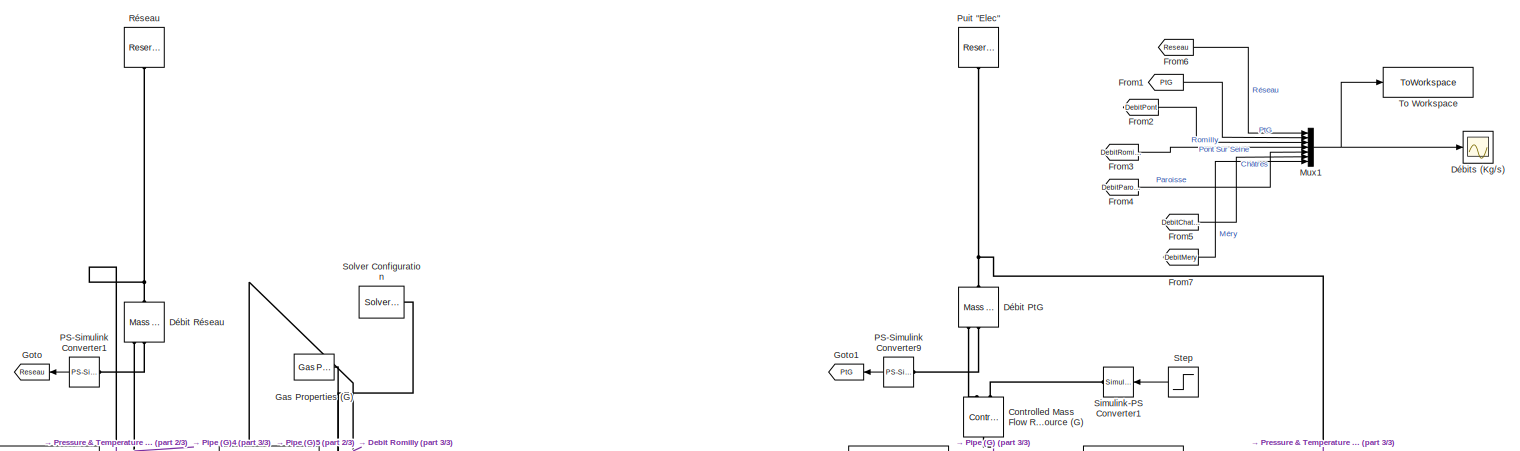
[diagram: root canvas - part 1/3, full width, top band]
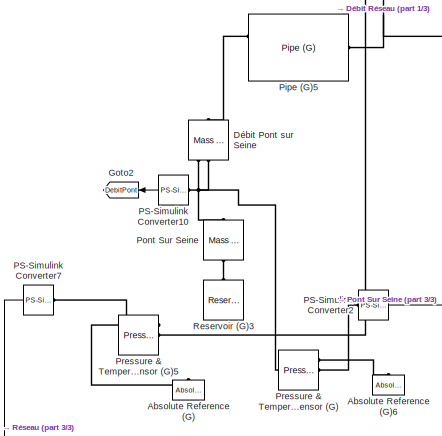
[diagram: root canvas - part 2/3, middle left region]
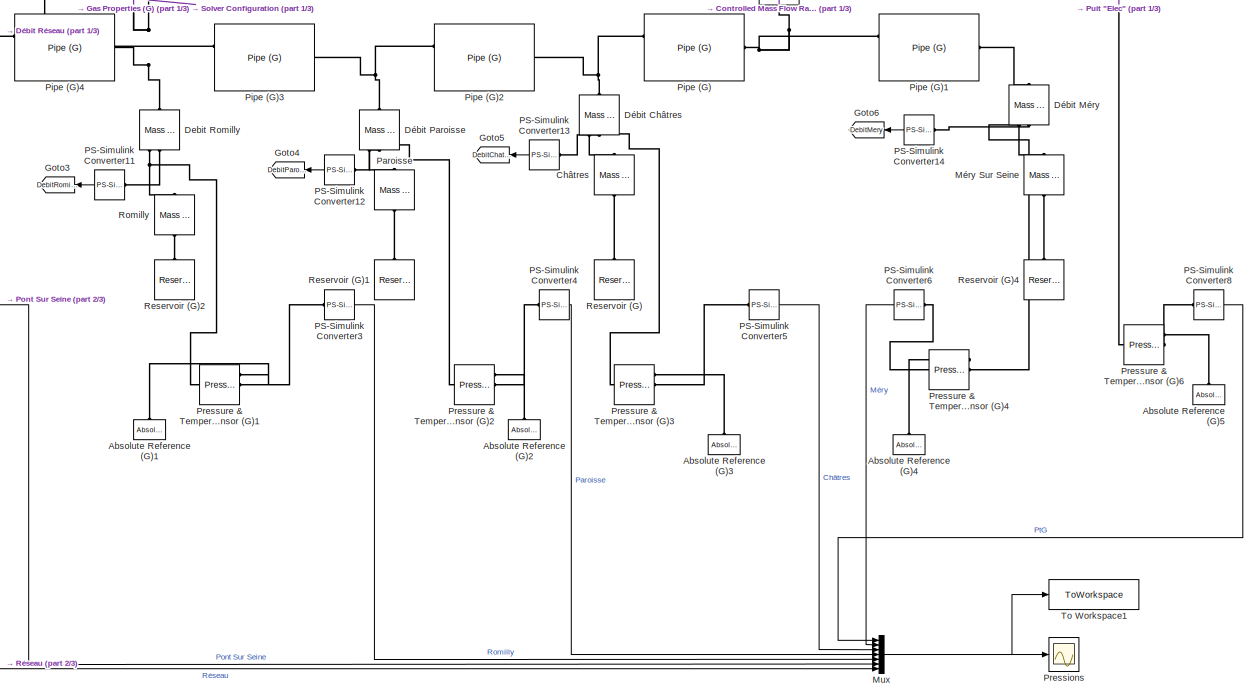
[diagram: root canvas - part 3/3, bottom center region]
MODEL slx_468d26a3371d
KIND model
CONFIG AbsTol = auto
CONFIG EnableMultiTasking = off
CONFIG FixedStep = auto
CONFIG MaxStep = auto
CONFIG MinStep = auto
CONFIG RelTol = 1e-3
CONFIG SampleTimeConstraint = Unconstrained
CONFIG Solver = VariableStepAuto
CONFIG SolverName = VariableStepAuto
CONFIG StartTime = 0.0
CONFIG StopTime = 1000
BLOCK [Reference] Absolute Reference (G)  REF=fl_lib/Gas/Elements/Absolute Reference
(G)
  Ports = [0, 0, 0, 0, 0, 1]
  SourceBlock = fl_lib/Gas/Elements/Absolute Reference\n(G)
  SourceProductBaseCode = SS
  SourceProductName = Simscape
  SourceType = Absolute Reference\n(G)
BLOCK [Reference] Absolute Reference (G)1  REF=fl_lib/Gas/Elements/Absolute Reference
(G)
  Ports = [0, 0, 0, 0, 0, 1]
  SourceBlock = fl_lib/Gas/Elements/Absolute Reference\n(G)
  SourceProductBaseCode = SS
  SourceProductName = Simscape
  SourceType = Absolute Reference\n(G)
BLOCK [Reference] Absolute Reference (G)2  REF=fl_lib/Gas/Elements/Absolute Reference
(G)
  Ports = [0, 0, 0, 0, 0, 1]
  SourceBlock = fl_lib/Gas/Elements/Absolute Reference\n(G)
  SourceProductBaseCode = SS
  SourceProductName = Simscape
  SourceType = Absolute Reference\n(G)
BLOCK [Reference] Absolute Reference (G)3  REF=fl_lib/Gas/Elements/Absolute Reference
(G)
  Ports = [0, 0, 0, 0, 0, 1]
  SourceBlock = fl_lib/Gas/Elements/Absolute Reference\n(G)
  SourceProductBaseCode = SS
  SourceProductName = Simscape
  SourceType = Absolute Reference\n(G)
BLOCK [Reference] Absolute Reference (G)4  REF=fl_lib/Gas/Elements/Absolute Reference
(G)
  Ports = [0, 0, 0, 0, 0, 1]
  SourceBlock = fl_lib/Gas/Elements/Absolute Reference\n(G)
  SourceProductBaseCode = SS
  SourceProductName = Simscape
  SourceType = Absolute Reference\n(G)
BLOCK [Reference] Absolute Reference (G)5  REF=fl_lib/Gas/Elements/Absolute Reference
(G)
  Ports = [0, 0, 0, 0, 0, 1]
  SourceBlock = fl_lib/Gas/Elements/Absolute Reference\n(G)
  SourceProductBaseCode = SS
  SourceProductName = Simscape
  SourceType = Absolute Reference\n(G)
BLOCK [Reference] Absolute Reference (G)6  REF=fl_lib/Gas/Elements/Absolute Reference
(G)
  Ports = [0, 0, 0, 0, 0, 1]
  SourceBlock = fl_lib/Gas/Elements/Absolute Reference\n(G)
  SourceProductBaseCode = SS
  SourceProductName = Simscape
  SourceType = Absolute Reference\n(G)
BLOCK [Reference] Châtres  REF=fl_lib/Gas/Sources/Mass Flow Rate
Source (G)
  Ports = [0, 0, 0, 0, 0, 1, 1]
  SourceBlock = fl_lib/Gas/Sources/Mass Flow Rate\nSource (G)
  SourceProductBaseCode = SS
  SourceProductName = Simscape
  SourceType = Mass Flow Rate\nSource (G)
BLOCK [Reference] Controlled Mass Flow Rate Source (G)  REF=fl_lib/Gas/Sources/Controlled Mass Flow
Rate Source (G)
  Ports = [0, 0, 0, 0, 0, 2, 1]
  SourceBlock = fl_lib/Gas/Sources/Controlled Mass Flow\nRate Source (G)
  SourceProductBaseCode = SS
  SourceProductName = Simscape
  SourceType = Controlled Mass Flow\nRate Source (G)
BLOCK [Reference] Debit Romilly  REF=fl_lib/Gas/Sensors/Mass & Energy Flow
Rate Sensor (G)
  Ports = [0, 0, 0, 0, 0, 1, 3]
  SourceBlock = fl_lib/Gas/Sensors/Mass & Energy Flow\nRate Sensor (G)
  SourceProductBaseCode = SS
  SourceProductName = Simscape
  SourceType = Mass & Energy Flow\nRate Sensor (G)
BLOCK [Reference] Débit Châtres  REF=fl_lib/Gas/Sensors/Mass & Energy Flow
Rate Sensor (G)
  Ports = [0, 0, 0, 0, 0, 1, 3]
  SourceBlock = fl_lib/Gas/Sensors/Mass & Energy Flow\nRate Sensor (G)
  SourceProductBaseCode = SS
  SourceProductName = Simscape
  SourceType = Mass & Energy Flow\nRate Sensor (G)
BLOCK [Reference] Débit Méry  REF=fl_lib/Gas/Sensors/Mass & Energy Flow
Rate Sensor (G)
  Ports = [0, 0, 0, 0, 0, 1, 3]
  SourceBlock = fl_lib/Gas/Sensors/Mass & Energy Flow\nRate Sensor (G)
  SourceProductBaseCode = SS
  SourceProductName = Simscape
  SourceType = Mass & Energy Flow\nRate Sensor (G)
BLOCK [Reference] Débit Paroisse  REF=fl_lib/Gas/Sensors/Mass & Energy Flow
Rate Sensor (G)
  Ports = [0, 0, 0, 0, 0, 1, 3]
  SourceBlock = fl_lib/Gas/Sensors/Mass & Energy Flow\nRate Sensor (G)
  SourceProductBaseCode = SS
  SourceProductName = Simscape
  SourceType = Mass & Energy Flow\nRate Sensor (G)
BLOCK [Reference] Débit Pont sur Seine  REF=fl_lib/Gas/Sensors/Mass & Energy Flow
Rate Sensor (G)
  Ports = [0, 0, 0, 0, 0, 1, 3]
  SourceBlock = fl_lib/Gas/Sensors/Mass & Energy Flow\nRate Sensor (G)
  SourceProductBaseCode = SS
  SourceProductName = Simscape
  SourceType = Mass & Energy Flow\nRate Sensor (G)
BLOCK [Reference] Débit PtG  REF=fl_lib/Gas/Sensors/Mass & Energy Flow
Rate Sensor (G)
  Ports = [0, 0, 0, 0, 0, 1, 3]
  SourceBlock = fl_lib/Gas/Sensors/Mass & Energy Flow\nRate Sensor (G)
  SourceProductBaseCode = SS
  SourceProductName = Simscape
  SourceType = Mass & Energy Flow\nRate Sensor (G)
BLOCK [Reference] Débit Réseau  REF=fl_lib/Gas/Sensors/Mass & Energy Flow
Rate Sensor (G)
  Ports = [0, 0, 0, 0, 0, 1, 3]
  SourceBlock = fl_lib/Gas/Sensors/Mass & Energy Flow\nRate Sensor (G)
  SourceProductBaseCode = SS
  SourceProductName = Simscape
  SourceType = Mass & Energy Flow\nRate Sensor (G)
BLOCK [Scope] Débits (Kg//s) 
  Floating = off
  NumInputPorts = 1
  Ports = [1]
  ScopeSpecificationString = Simulink.scopes.TimeScopeBlockCfg('CurrentConfiguration', extmgr.ConfigurationSet(extmgr.Configuration('Core','General UI',true,'FigureColor',[0.941176470588235 0.941176470588235 0.941176470588235],'DisplayFullSourceName',true),extmgr.Configuration('Core','Source UI',true),extmgr.Configuration('Sources','WiredSimulink',true),extmgr.Configuration('Visuals','Time Domain',true,'SerializedDisplays',{s...<+1790ch>
BLOCK [From] From1
  GotoTag = PtG
  TagVisibility = global
BLOCK [From] From2
  GotoTag = DebitPont
  TagVisibility = global
BLOCK [From] From3
  GotoTag = DebitRomilly
  IconDisplay = Tag and signal name
  TagVisibility = global
BLOCK [From] From4
  GotoTag = DebitParoisse
  TagVisibility = global
BLOCK [From] From5
  GotoTag = DebitChatres
  TagVisibility = global
BLOCK [From] From6
  GotoTag = Reseau
  TagVisibility = global
BLOCK [From] From7
  GotoTag = DebitMery
  TagVisibility = global
BLOCK [Reference] Gas Properties (G)  REF=fl_lib/Gas/Utilities/Gas Properties (G)
  Ports = [0, 0, 0, 0, 0, 0, 1]
  SourceBlock = fl_lib/Gas/Utilities/Gas Properties (G)
  SourceProductBaseCode = SS
  SourceProductName = Simscape
  SourceType = Gas Properties (G)
BLOCK [Goto] Goto
  GotoTag = Reseau
  TagVisibility = global
BLOCK [Goto] Goto1
  GotoTag = PtG
  TagVisibility = global
BLOCK [Goto] Goto2
  GotoTag = DebitPont
  TagVisibility = global
BLOCK [Goto] Goto3
  GotoTag = DebitRomilly
  TagVisibility = global
BLOCK [Goto] Goto4
  GotoTag = DebitParoisse
  IconDisplay = Signal name
  TagVisibility = global
BLOCK [Goto] Goto5
  GotoTag = DebitChatres
  TagVisibility = global
BLOCK [Goto] Goto6
  GotoTag = DebitMery
  TagVisibility = global
BLOCK [Mux] Mux
  DisplayOption = bar
  Inputs = 7
  Ports = [7, 1]
BLOCK [Mux] Mux1
  DisplayOption = bar
  Inputs = 7
  Ports = [7, 1]
BLOCK [Reference] Méry Sur Seine  REF=fl_lib/Gas/Sources/Mass Flow Rate
Source (G)
  Ports = [0, 0, 0, 0, 0, 1, 1]
  SourceBlock = fl_lib/Gas/Sources/Mass Flow Rate\nSource (G)
  SourceProductBaseCode = SS
  SourceProductName = Simscape
  SourceType = Mass Flow Rate\nSource (G)
BLOCK [Reference] PS-Simulink Converter1  REF=nesl_utility/PS-Simulink
Converter
  Ports = [0, 1, 0, 0, 0, 1]
  SourceBlock = nesl_utility/PS-Simulink\nConverter
  SourceProductBaseCode = SS
  SourceProductName = Simscape
  SourceType = PS-Simulink\nConverter
BLOCK [Reference] PS-Simulink Converter10  REF=nesl_utility/PS-Simulink
Converter
  Ports = [0, 1, 0, 0, 0, 1]
  SourceBlock = nesl_utility/PS-Simulink\nConverter
  SourceProductBaseCode = SS
  SourceProductName = Simscape
  SourceType = PS-Simulink\nConverter
BLOCK [Reference] PS-Simulink Converter11  REF=nesl_utility/PS-Simulink
Converter
  Ports = [0, 1, 0, 0, 0, 1]
  SourceBlock = nesl_utility/PS-Simulink\nConverter
  SourceProductBaseCode = SS
  SourceProductName = Simscape
  SourceType = PS-Simulink\nConverter
BLOCK [Reference] PS-Simulink Converter12  REF=nesl_utility/PS-Simulink
Converter
  Ports = [0, 1, 0, 0, 0, 1]
  SourceBlock = nesl_utility/PS-Simulink\nConverter
  SourceProductBaseCode = SS
  SourceProductName = Simscape
  SourceType = PS-Simulink\nConverter
BLOCK [Reference] PS-Simulink Converter13  REF=nesl_utility/PS-Simulink
Converter
  Ports = [0, 1, 0, 0, 0, 1]
  SourceBlock = nesl_utility/PS-Simulink\nConverter
  SourceProductBaseCode = SS
  SourceProductName = Simscape
  SourceType = PS-Simulink\nConverter
BLOCK [Reference] PS-Simulink Converter14  REF=nesl_utility/PS-Simulink
Converter
  Ports = [0, 1, 0, 0, 0, 1]
  SourceBlock = nesl_utility/PS-Simulink\nConverter
  SourceProductBaseCode = SS
  SourceProductName = Simscape
  SourceType = PS-Simulink\nConverter
BLOCK [Reference] PS-Simulink Converter2  REF=nesl_utility/PS-Simulink
Converter
  Ports = [0, 1, 0, 0, 0, 1]
  SourceBlock = nesl_utility/PS-Simulink\nConverter
  SourceProductBaseCode = SS
  SourceProductName = Simscape
  SourceType = PS-Simulink\nConverter
BLOCK [Reference] PS-Simulink Converter3  REF=nesl_utility/PS-Simulink
Converter
  Ports = [0, 1, 0, 0, 0, 1]
  SourceBlock = nesl_utility/PS-Simulink\nConverter
  SourceProductBaseCode = SS
  SourceProductName = Simscape
  SourceType = PS-Simulink\nConverter
BLOCK [Reference] PS-Simulink Converter4  REF=nesl_utility/PS-Simulink
Converter
  Ports = [0, 1, 0, 0, 0, 1]
  SourceBlock = nesl_utility/PS-Simulink\nConverter
  SourceProductBaseCode = SS
  SourceProductName = Simscape
  SourceType = PS-Simulink\nConverter
BLOCK [Reference] PS-Simulink Converter5  REF=nesl_utility/PS-Simulink
Converter
  Ports = [0, 1, 0, 0, 0, 1]
  SourceBlock = nesl_utility/PS-Simulink\nConverter
  SourceProductBaseCode = SS
  SourceProductName = Simscape
  SourceType = PS-Simulink\nConverter
BLOCK [Reference] PS-Simulink Converter6  REF=nesl_utility/PS-Simulink
Converter
  Ports = [0, 1, 0, 0, 0, 1]
  SourceBlock = nesl_utility/PS-Simulink\nConverter
  SourceProductBaseCode = SS
  SourceProductName = Simscape
  SourceType = PS-Simulink\nConverter
BLOCK [Reference] PS-Simulink Converter7  REF=nesl_utility/PS-Simulink
Converter
  Ports = [0, 1, 0, 0, 0, 1]
  SourceBlock = nesl_utility/PS-Simulink\nConverter
  SourceProductBaseCode = SS
  SourceProductName = Simscape
  SourceType = PS-Simulink\nConverter
BLOCK [Reference] PS-Simulink Converter8  REF=nesl_utility/PS-Simulink
Converter
  Ports = [0, 1, 0, 0, 0, 1]
  SourceBlock = nesl_utility/PS-Simulink\nConverter
  SourceProductBaseCode = SS
  SourceProductName = Simscape
  SourceType = PS-Simulink\nConverter
BLOCK [Reference] PS-Simulink Converter9  REF=nesl_utility/PS-Simulink
Converter
  Ports = [0, 1, 0, 0, 0, 1]
  SourceBlock = nesl_utility/PS-Simulink\nConverter
  SourceProductBaseCode = SS
  SourceProductName = Simscape
  SourceType = PS-Simulink\nConverter
BLOCK [Reference] Paroisse  REF=fl_lib/Gas/Sources/Mass Flow Rate
Source (G)
  Ports = [0, 0, 0, 0, 0, 1, 1]
  SourceBlock = fl_lib/Gas/Sources/Mass Flow Rate\nSource (G)
  SourceProductBaseCode = SS
  SourceProductName = Simscape
  SourceType = Mass Flow Rate\nSource (G)
BLOCK [Reference] Pipe (G)  REF=fl_lib/Gas/Elements/Pipe (G)
  Ports = [0, 0, 0, 0, 0, 2, 1]
  SourceBlock = fl_lib/Gas/Elements/Pipe (G)
  SourceProductBaseCode = SS
  SourceProductName = Simscape
  SourceType = Pipe (G)
BLOCK [Reference] Pipe (G)1  REF=fl_lib/Gas/Elements/Pipe (G)
  Ports = [0, 0, 0, 0, 0, 2, 1]
  SourceBlock = fl_lib/Gas/Elements/Pipe (G)
  SourceProductBaseCode = SS
  SourceProductName = Simscape
  SourceType = Pipe (G)
BLOCK [Reference] Pipe (G)2  REF=fl_lib/Gas/Elements/Pipe (G)
  Ports = [0, 0, 0, 0, 0, 2, 1]
  SourceBlock = fl_lib/Gas/Elements/Pipe (G)
  SourceProductBaseCode = SS
  SourceProductName = Simscape
  SourceType = Pipe (G)
BLOCK [Reference] Pipe (G)3  REF=fl_lib/Gas/Elements/Pipe (G)
  Ports = [0, 0, 0, 0, 0, 2, 1]
  SourceBlock = fl_lib/Gas/Elements/Pipe (G)
  SourceProductBaseCode = SS
  SourceProductName = Simscape
  SourceType = Pipe (G)
BLOCK [Reference] Pipe (G)4  REF=fl_lib/Gas/Elements/Pipe (G)
  Ports = [0, 0, 0, 0, 0, 2, 1]
  SourceBlock = fl_lib/Gas/Elements/Pipe (G)
  SourceProductBaseCode = SS
  SourceProductName = Simscape
  SourceType = Pipe (G)
BLOCK [Reference] Pipe (G)5  REF=fl_lib/Gas/Elements/Pipe (G)
  Ports = [0, 0, 0, 0, 0, 2, 1]
  SourceBlock = fl_lib/Gas/Elements/Pipe (G)
  SourceProductBaseCode = SS
  SourceProductName = Simscape
  SourceType = Pipe (G)
BLOCK [Reference] Pont Sur Seine  REF=fl_lib/Gas/Sources/Mass Flow Rate
Source (G)
  Ports = [0, 0, 0, 0, 0, 1, 1]
  SourceBlock = fl_lib/Gas/Sources/Mass Flow Rate\nSource (G)
  SourceProductBaseCode = SS
  SourceProductName = Simscape
  SourceType = Mass Flow Rate\nSource (G)
BLOCK [Scope] Pressions
  Floating = off
  NumInputPorts = 1
  Ports = [1]
  ScopeSpecificationString = Simulink.scopes.TimeScopeBlockCfg('CurrentConfiguration', extmgr.ConfigurationSet(extmgr.Configuration('Core','General UI',true,'FigureColor',[0.941176470588235 0.941176470588235 0.941176470588235]),extmgr.Configuration('Core','Source UI',true),extmgr.Configuration('Sources','WiredSimulink',true,'DataLoggingVariableName','ScopeData1'),extmgr.Configuration('Visuals','Time Domain',true,'SerializedDi...<+1876ch>
BLOCK [Reference] Pressure & Temperature Sensor (G)  REF=fl_lib/Gas/Sensors/Pressure &
Temperature Sensor
(G)
  Ports = [0, 0, 0, 0, 0, 1, 3]
  SourceBlock = fl_lib/Gas/Sensors/Pressure &\nTemperature Sensor\n(G)
  SourceProductBaseCode = SS
  SourceProductName = Simscape
  SourceType = Pressure &\nTemperature Sensor\n(G)
BLOCK [Reference] Pressure & Temperature Sensor (G)1  REF=fl_lib/Gas/Sensors/Pressure &
Temperature Sensor
(G)
  Ports = [0, 0, 0, 0, 0, 1, 3]
  SourceBlock = fl_lib/Gas/Sensors/Pressure &\nTemperature Sensor\n(G)
  SourceProductBaseCode = SS
  SourceProductName = Simscape
  SourceType = Pressure &\nTemperature Sensor\n(G)
BLOCK [Reference] Pressure & Temperature Sensor (G)2  REF=fl_lib/Gas/Sensors/Pressure &
Temperature Sensor
(G)
  Ports = [0, 0, 0, 0, 0, 1, 3]
  SourceBlock = fl_lib/Gas/Sensors/Pressure &\nTemperature Sensor\n(G)
  SourceProductBaseCode = SS
  SourceProductName = Simscape
  SourceType = Pressure &\nTemperature Sensor\n(G)
BLOCK [Reference] Pressure & Temperature Sensor (G)3  REF=fl_lib/Gas/Sensors/Pressure &
Temperature Sensor
(G)
  Ports = [0, 0, 0, 0, 0, 1, 3]
  SourceBlock = fl_lib/Gas/Sensors/Pressure &\nTemperature Sensor\n(G)
  SourceProductBaseCode = SS
  SourceProductName = Simscape
  SourceType = Pressure &\nTemperature Sensor\n(G)
BLOCK [Reference] Pressure & Temperature Sensor (G)4  REF=fl_lib/Gas/Sensors/Pressure &
Temperature Sensor
(G)
  Ports = [0, 0, 0, 0, 0, 1, 3]
  SourceBlock = fl_lib/Gas/Sensors/Pressure &\nTemperature Sensor\n(G)
  SourceProductBaseCode = SS
  SourceProductName = Simscape
  SourceType = Pressure &\nTemperature Sensor\n(G)
BLOCK [Reference] Pressure & Temperature Sensor (G)5  REF=fl_lib/Gas/Sensors/Pressure &
Temperature Sensor
(G)
  Ports = [0, 0, 0, 0, 0, 1, 3]
  SourceBlock = fl_lib/Gas/Sensors/Pressure &\nTemperature Sensor\n(G)
  SourceProductBaseCode = SS
  SourceProductName = Simscape
  SourceType = Pressure &\nTemperature Sensor\n(G)
BLOCK [Reference] Pressure & Temperature Sensor (G)6  REF=fl_lib/Gas/Sensors/Pressure &
Temperature Sensor
(G)
  Ports = [0, 0, 0, 0, 0, 1, 3]
  SourceBlock = fl_lib/Gas/Sensors/Pressure &\nTemperature Sensor\n(G)
  SourceProductBaseCode = SS
  SourceProductName = Simscape
  SourceType = Pressure &\nTemperature Sensor\n(G)
BLOCK [Reference] Puit "Elec"  REF=fl_lib/Gas/Elements/Reservoir (G)
  Ports = [0, 0, 0, 0, 0, 1]
  SourceBlock = fl_lib/Gas/Elements/Reservoir (G)
  SourceProductBaseCode = SS
  SourceProductName = Simscape
  SourceType = Reservoir (G)
BLOCK [Reference] Reservoir (G)  REF=fl_lib/Gas/Elements/Reservoir (G)
  Ports = [0, 0, 0, 0, 0, 1]
  SourceBlock = fl_lib/Gas/Elements/Reservoir (G)
  SourceProductBaseCode = SS
  SourceProductName = Simscape
  SourceType = Reservoir (G)
BLOCK [Reference] Reservoir (G)1  REF=fl_lib/Gas/Elements/Reservoir (G)
  Ports = [0, 0, 0, 0, 0, 1]
  SourceBlock = fl_lib/Gas/Elements/Reservoir (G)
  SourceProductBaseCode = SS
  SourceProductName = Simscape
  SourceType = Reservoir (G)
BLOCK [Reference] Reservoir (G)2  REF=fl_lib/Gas/Elements/Reservoir (G)
  Ports = [0, 0, 0, 0, 0, 1]
  SourceBlock = fl_lib/Gas/Elements/Reservoir (G)
  SourceProductBaseCode = SS
  SourceProductName = Simscape
  SourceType = Reservoir (G)
BLOCK [Reference] Reservoir (G)3  REF=fl_lib/Gas/Elements/Reservoir (G)
  Ports = [0, 0, 0, 0, 0, 1]
  SourceBlock = fl_lib/Gas/Elements/Reservoir (G)
  SourceProductBaseCode = SS
  SourceProductName = Simscape
  SourceType = Reservoir (G)
BLOCK [Reference] Reservoir (G)4  REF=fl_lib/Gas/Elements/Reservoir (G)
  Ports = [0, 0, 0, 0, 0, 1]
  SourceBlock = fl_lib/Gas/Elements/Reservoir (G)
  SourceProductBaseCode = SS
  SourceProductName = Simscape
  SourceType = Reservoir (G)
BLOCK [Reference] Romilly  REF=fl_lib/Gas/Sources/Mass Flow Rate
Source (G)
  Ports = [0, 0, 0, 0, 0, 1, 1]
  SourceBlock = fl_lib/Gas/Sources/Mass Flow Rate\nSource (G)
  SourceProductBaseCode = SS
  SourceProductName = Simscape
  SourceType = Mass Flow Rate\nSource (G)
BLOCK [Reference] Réseau  REF=fl_lib/Gas/Elements/Reservoir (G)
  Ports = [0, 0, 0, 0, 0, 1]
  SourceBlock = fl_lib/Gas/Elements/Reservoir (G)
  SourceProductBaseCode = SS
  SourceProductName = Simscape
  SourceType = Reservoir (G)
BLOCK [Reference] Simulink-PS Converter1  REF=nesl_utility/Simulink-PS
Converter
  Ports = [1, 0, 0, 0, 0, 0, 1]
  SourceBlock = nesl_utility/Simulink-PS\nConverter
  SourceProductBaseCode = SS
  SourceProductName = Simscape
  SourceType = Simulink-PS\nConverter
BLOCK [Reference] Solver Configuration  REF=nesl_utility/Solver
Configuration
  Ports = [0, 0, 0, 0, 0, 0, 1]
  SourceBlock = nesl_utility/Solver\nConfiguration
  SourceProductBaseCode = SS
  SourceProductName = Simscape
  SourceType = Solver\nConfiguration
BLOCK [Step] Step
  After = PtG
  SampleTime = 0
  Time = 100
BLOCK [ToWorkspace] To Workspace
  FixptAsFi = on
  MaxDataPoints = inf
  Ports = [1]
  SampleTime = -1
  SaveFormat = Timeseries
  VariableName = Debits
BLOCK [ToWorkspace] To Workspace1
  FixptAsFi = on
  MaxDataPoints = inf
  Ports = [1]
  SampleTime = -1
  SaveFormat = Timeseries
  VariableName = Pressions
LINE From1:1 -> Mux1:2
LINE From2:1 -> Mux1:3
LINE From3:1 -> Mux1:4
LINE From4:1 -> Mux1:5
LINE From5:1 -> Mux1:6
LINE From6:1 -> Mux1:1
LINE From7:1 -> Mux1:7
NET Mux1:1 -> Débits (Kg//s) :1, To Workspace:1
NET Mux:1 -> Pressions:1, To Workspace1:1
LINE PS-Simulink Converter10:1 -> Goto2:1
LINE PS-Simulink Converter11:1 -> Goto3:1
LINE PS-Simulink Converter12:1 -> Goto4:1
LINE PS-Simulink Converter13:1 -> Goto5:1
LINE PS-Simulink Converter14:1 -> Goto6:1
LINE PS-Simulink Converter1:1 -> Goto:1
LINE PS-Simulink Converter2:1 -> Mux:6
LINE PS-Simulink Converter3:1 -> Mux:5
LINE PS-Simulink Converter4:1 -> Mux:4
LINE PS-Simulink Converter5:1 -> Mux:3
LINE PS-Simulink Converter6:1 -> Mux:2
LINE PS-Simulink Converter7:1 -> Mux:7
LINE PS-Simulink Converter8:1 -> Mux:1
LINE PS-Simulink Converter9:1 -> Goto1:1
LINE Step:1 -> Simulink-PS Converter1:1
PLINE Absolute Reference (G)1:LConn1 -- Pressure & Temperature Sensor (G)1:RConn1
PLINE Absolute Reference (G)2:LConn1 -- Pressure & Temperature Sensor (G)2:RConn1
PLINE Absolute Reference (G)3:LConn1 -- Pressure & Temperature Sensor (G)3:RConn1
PLINE Absolute Reference (G)4:LConn1 -- Pressure & Temperature Sensor (G)4:RConn1
PLINE Absolute Reference (G)5:LConn1 -- Pressure & Temperature Sensor (G)6:RConn1
PLINE Absolute Reference (G)6:LConn1 -- Pressure & Temperature Sensor (G):RConn1
PLINE Absolute Reference (G):LConn1 -- Pressure & Temperature Sensor (G)5:RConn1
PNET net1: Châtres:LConn1 -- Débit Châtres:RConn1 -- Pressure & Temperature Sensor (G)3:LConn1
PLINE Châtres:RConn1 -- Reservoir (G):LConn1
PLINE Controlled Mass Flow Rate Source (G):LConn1 -- Débit PtG:RConn1
PLINE Controlled Mass Flow Rate Source (G):LConn2 -- Simulink-PS Converter1:RConn1
PNET net2: Controlled Mass Flow Rate Source (G):RConn1 -- Pipe (G)1:LConn1 -- Pipe (G):RConn1
PNET net3: Debit Romilly:LConn1 -- Gas Properties (G):RConn1 -- Pipe (G)3:LConn1 -- Pipe (G)4:RConn1 -- Solver Configuration:RConn1
PNET net4: Debit Romilly:RConn1 -- Pressure & Temperature Sensor (G)1:LConn1 -- Romilly:LConn1
PLINE Debit Romilly:RConn2 -- PS-Simulink Converter11:LConn1
PNET net5: Débit Châtres:LConn1 -- Pipe (G)2:RConn1 -- Pipe (G):LConn1
PLINE Débit Châtres:RConn2 -- PS-Simulink Converter13:LConn1
PLINE Débit Méry:LConn1 -- Pipe (G)1:RConn1
PNET net6: Débit Méry:RConn1 -- Méry Sur Seine:LConn1 -- Pressure & Temperature Sensor (G)4:LConn1
PLINE Débit Méry:RConn2 -- PS-Simulink Converter14:LConn1
PNET net7: Débit Paroisse:LConn1 -- Pipe (G)2:LConn1 -- Pipe (G)3:RConn1
PNET net8: Débit Paroisse:RConn1 -- Paroisse:LConn1 -- Pressure & Temperature Sensor (G)2:LConn1
PLINE Débit Paroisse:RConn2 -- PS-Simulink Converter12:LConn1
PLINE Débit Pont sur Seine:LConn1 -- Pipe (G)5:LConn1
PNET net9: Débit Pont sur Seine:RConn1 -- Pont Sur Seine:LConn1 -- Pressure & Temperature Sensor (G):LConn1
PLINE Débit Pont sur Seine:RConn2 -- PS-Simulink Converter10:LConn1
PNET net10: Débit PtG:LConn1 -- Pressure & Temperature Sensor (G)6:LConn1 -- Puit "Elec":LConn1
PLINE Débit PtG:RConn2 -- PS-Simulink Converter9:LConn1
PNET net11: Débit Réseau:LConn1 -- Pressure & Temperature Sensor (G)5:LConn1 -- Réseau:LConn1
PNET net12: Débit Réseau:RConn1 -- Pipe (G)4:LConn1 -- Pipe (G)5:RConn1
PLINE Débit Réseau:RConn2 -- PS-Simulink Converter1:LConn1
PLINE Méry Sur Seine:RConn1 -- Reservoir (G)4:LConn1
PLINE PS-Simulink Converter2:LConn1 -- Pressure & Temperature Sensor (G):RConn2
PLINE PS-Simulink Converter3:LConn1 -- Pressure & Temperature Sensor (G)1:RConn2
PLINE PS-Simulink Converter4:LConn1 -- Pressure & Temperature Sensor (G)2:RConn2
PLINE PS-Simulink Converter5:LConn1 -- Pressure & Temperature Sensor (G)3:RConn2
PLINE PS-Simulink Converter6:LConn1 -- Pressure & Temperature Sensor (G)4:RConn2
PLINE PS-Simulink Converter7:LConn1 -- Pressure & Temperature Sensor (G)5:RConn2
PLINE PS-Simulink Converter8:LConn1 -- Pressure & Temperature Sensor (G)6:RConn2
PLINE Paroisse:RConn1 -- Reservoir (G)1:LConn1
PLINE Pont Sur Seine:RConn1 -- Reservoir (G)3:LConn1
PLINE Reservoir (G)2:LConn1 -- Romilly:RConn1
note: NET lines group one-source signal fan-out (src -> all destinations, sorted); 1:1 wires keep LINE; PNET lines group multi-terminal physical nets as a canonical sorted terminal list (undirected conserving connections); 2-terminal nets keep the pairwise PLINE form
